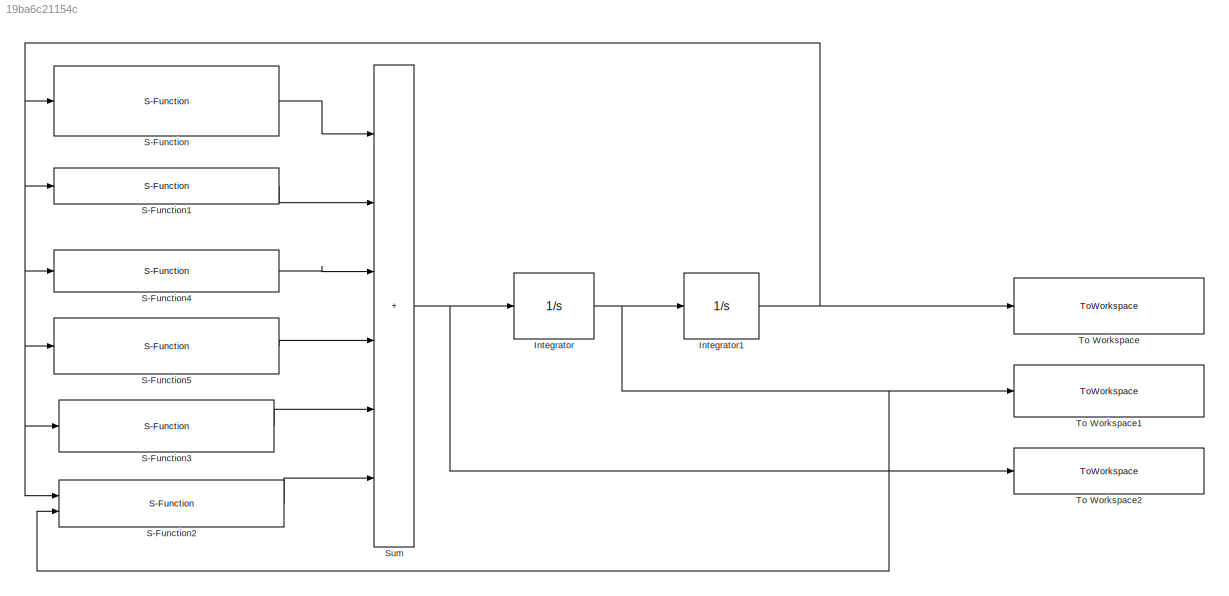
MODEL slx_19ba6c21154c
KIND model
CONFIG AbsTol = auto
CONFIG EnableMultiTasking = off
CONFIG FixedStep = 1
CONFIG MaxStep = auto
CONFIG MinStep = auto
CONFIG RelTol = 1e-3
CONFIG SampleTimeConstraint = Unconstrained
CONFIG Solver = FixedStepAuto
CONFIG SolverName = FixedStepAuto
CONFIG StartTime = 0.0
CONFIG StopTime = 10000
BLOCK [Integrator] Integrator
  InitialCondition = v_start
  Ports = [1, 1]
BLOCK [Integrator] Integrator1
  InitialCondition = r_start
  Ports = [1, 1]
BLOCK [S-Function] S-Function
  EnableBusSupport = off
  FunctionName = Simple_gravity_s_function
  Ports = [1, 1]
  SFcnIsStateOwnerBlock = off
  SFunctionDeploymentMode = off
BLOCK [S-Function] S-Function1
  EnableBusSupport = off
  FunctionName = J2_effect_s_function
  Ports = [1, 1]
  SFcnIsStateOwnerBlock = off
  SFunctionDeploymentMode = off
BLOCK [S-Function] S-Function2
  EnableBusSupport = off
  FunctionName = air_drag_force_s_function
  Ports = [2, 1]
  SFcnIsStateOwnerBlock = off
  SFunctionDeploymentMode = off
BLOCK [S-Function] S-Function3
  EnableBusSupport = off
  FunctionName = SRP_s_function
  Ports = [1, 1]
  SFcnIsStateOwnerBlock = off
  SFunctionDeploymentMode = off
BLOCK [S-Function] S-Function4
  EnableBusSupport = off
  FunctionName = moon_grav_s_function
  Ports = [1, 1]
  SFcnIsStateOwnerBlock = off
  SFunctionDeploymentMode = off
BLOCK [S-Function] S-Function5
  EnableBusSupport = off
  FunctionName = sun_grav_s_function
  Ports = [1, 1]
  SFcnIsStateOwnerBlock = off
  SFunctionDeploymentMode = off
BLOCK [Sum] Sum
  IconShape = rectangular
  InputSameDT = on
  Inputs = ++++++
  Ports = [6, 1]
BLOCK [ToWorkspace] To Workspace
  FixptAsFi = on
  MaxDataPoints = inf
  Ports = [1]
  SampleTime = -1
  VariableName = position_perturbed
BLOCK [ToWorkspace] To Workspace1
  FixptAsFi = on
  MaxDataPoints = inf
  Ports = [1]
  SampleTime = -1
  VariableName = velocity_perturbed
BLOCK [ToWorkspace] To Workspace2
  FixptAsFi = on
  MaxDataPoints = inf
  Ports = [1]
  SampleTime = -1
  VariableName = acc_perturbed
NET Integrator1:1 -> S-Function1:1, S-Function2:1, S-Function3:1, S-Function4:1, S-Function5:1, S-Function:1, To Workspace:1
NET Integrator:1 -> Integrator1:1, S-Function2:2, To Workspace1:1
LINE S-Function1:1 -> Sum:2
LINE S-Function2:1 -> Sum:6
LINE S-Function3:1 -> Sum:5
LINE S-Function4:1 -> Sum:3
LINE S-Function5:1 -> Sum:4
LINE S-Function:1 -> Sum:1
NET Sum:1 -> Integrator:1, To Workspace2:1
note: NET lines group one-source signal fan-out (src -> all destinations, sorted); 1:1 wires keep LINE
